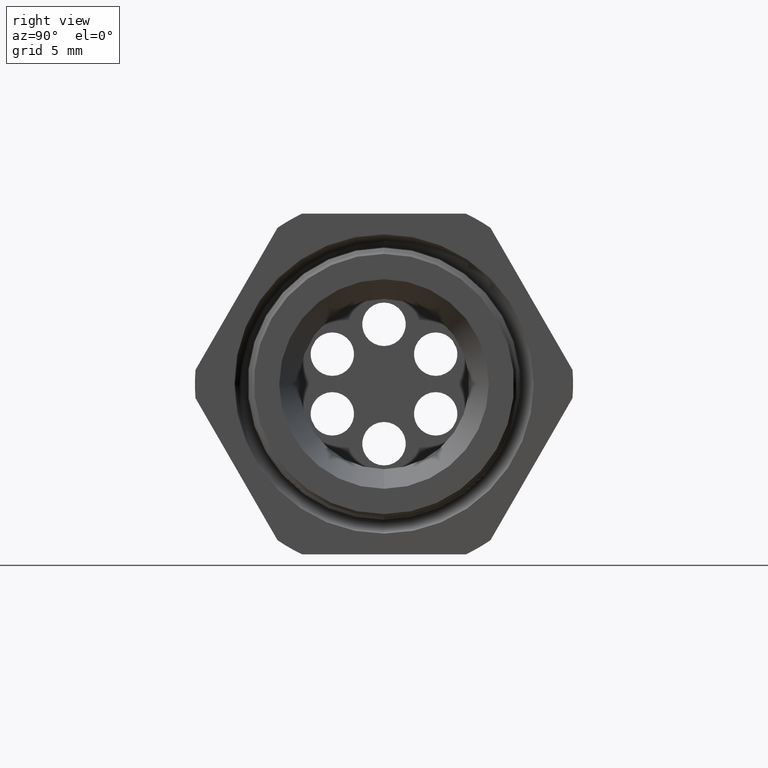
[diagram: clean part render]
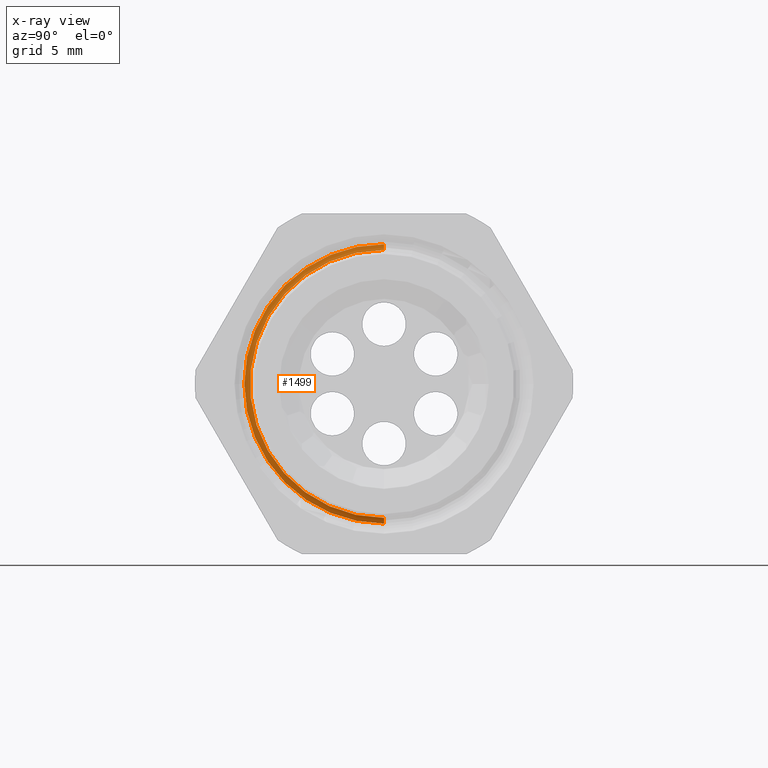
[diagram: x-ray — body ghosted, one internal face saturated and labeled with its STEP entity id]
A machine part, right view, then the same camera in x-ray: the body is ghosted and one INTERNAL B-rep face — a face not visible from any outside direction — is saturated and labeled: STEP entity #1499.
In plain terms, the highlighted conical surface has half-angle 61.5 deg.
Its self-contained STEP definition (entity closure, byte-faithful):
#202 = VERTEX_POINT ( 'NONE', #2079 ) ;
#214 = EDGE_CURVE ( 'NONE', #202, #215, #2064, .T. ) ;
#215 = VERTEX_POINT ( 'NONE', #2122 ) ;
#218 = VERTEX_POINT ( 'NONE', #2116 ) ;
#220 = EDGE_CURVE ( 'NONE', #239, #218, #2115, .T. ) ;
#239 = VERTEX_POINT ( 'NONE', #2135 ) ;
#1290 = EDGE_CURVE ( 'NONE', #218, #215, #4152, .T. ) ;
#1499 = ADVANCED_FACE ( 'NONE', ( #4455 ), #4454, .T. ) ;
#1500 = ORIENTED_EDGE ( 'NONE', *, *, #214, .F. ) ;
#1501 = ORIENTED_EDGE ( 'NONE', *, *, #1502, .F. ) ;
#1502 = EDGE_CURVE ( 'NONE', #239, #202, #4453, .T. ) ;
#1503 = ORIENTED_EDGE ( 'NONE', *, *, #220, .T. ) ;
#1504 = ORIENTED_EDGE ( 'NONE', *, *, #1290, .T. ) ;
#1522 = EDGE_LOOP ( 'NONE', ( #1500, #1501, #1503, #1504 ) ) ;
#2061 = DIRECTION ( 'NONE',  ( -0.4771587602596191200, 1.076240564057387800E-016, -0.8788171126619595000 ) ) ;
#2062 = VECTOR ( 'NONE', #2061, 39.37007874015748100 ) ;
#2063 = CARTESIAN_POINT ( 'NONE',  ( -0.5854330708661420500, 4.837354856632045600E-017, -0.3950000000000000200 ) ) ;
#2064 = LINE ( 'NONE', #2063, #2062 ) ;
#2079 = CARTESIAN_POINT ( 'NONE',  ( -0.5716586839320380000, 4.623457067722416200E-017, -0.3696307351718083300 ) ) ;
#2112 = DIRECTION ( 'NONE',  ( -0.4771587602596191200, 0.0000000000000000000, 0.8788171126619595000 ) ) ;
#2113 = VECTOR ( 'NONE', #2112, 39.37007874015748100 ) ;
#2114 = CARTESIAN_POINT ( 'NONE',  ( -0.5854330708661420500, 0.0000000000000000000, 0.3950000000000000200 ) ) ;
#2115 = LINE ( 'NONE', #2114, #2113 ) ;
#2116 = CARTESIAN_POINT ( 'NONE',  ( -0.5802408424937912600, 0.0000000000000000000, 0.3854371049501675900 ) ) ;
#2122 = CARTESIAN_POINT ( 'NONE',  ( -0.5802408424937912600, 4.722094547959215600E-017, -0.3854371049501675900 ) ) ;
#2135 = CARTESIAN_POINT ( 'NONE',  ( -0.5716586839320380000, 0.0000000000000000000, 0.3696307351718083300 ) ) ;
#4144 = DIRECTION ( 'NONE',  ( 0.0000000000000000000, 0.0000000000000000000, 1.000000000000000000 ) ) ;
#4145 = DIRECTION ( 'NONE',  ( 1.000000000000000000, 0.0000000000000000000, 0.0000000000000000000 ) ) ;
#4146 = CARTESIAN_POINT ( 'NONE',  ( -0.5802408424937912600, 0.0000000000000000000, 0.0000000000000000000 ) ) ;
#4147 = AXIS2_PLACEMENT_3D ( 'NONE', #4146, #4145, #4144 ) ;
#4152 = CIRCLE ( 'NONE', #4147, 0.3854371049501675900 ) ;
#4445 = DIRECTION ( 'NONE',  ( 0.0000000000000000000, 0.0000000000000000000, -1.000000000000000000 ) ) ;
#4446 = DIRECTION ( 'NONE',  ( 1.000000000000000000, 0.0000000000000000000, 0.0000000000000000000 ) ) ;
#4447 = CARTESIAN_POINT ( 'NONE',  ( -0.5716586839320380000, 0.0000000000000000000, 0.0000000000000000000 ) ) ;
#4448 = AXIS2_PLACEMENT_3D ( 'NONE', #4447, #4446, #4445 ) ;
#4449 = DIRECTION ( 'NONE',  ( 0.0000000000000000000, 0.0000000000000000000, 1.000000000000000000 ) ) ;
#4450 = DIRECTION ( 'NONE',  ( -1.000000000000000000, 0.0000000000000000000, 0.0000000000000000000 ) ) ;
#4451 = CARTESIAN_POINT ( 'NONE',  ( -0.5854330708661420500, 0.0000000000000000000, 0.0000000000000000000 ) ) ;
#4452 = AXIS2_PLACEMENT_3D ( 'NONE', #4451, #4450, #4449 ) ;
#4453 = CIRCLE ( 'NONE', #4448, 0.3696307351718083300 ) ;
#4454 = CONICAL_SURFACE ( 'NONE', #4452, 0.3950000000000000200, 1.073377489976500500 ) ;
#4455 = FACE_OUTER_BOUND ( 'NONE', #1522, .T. ) ;